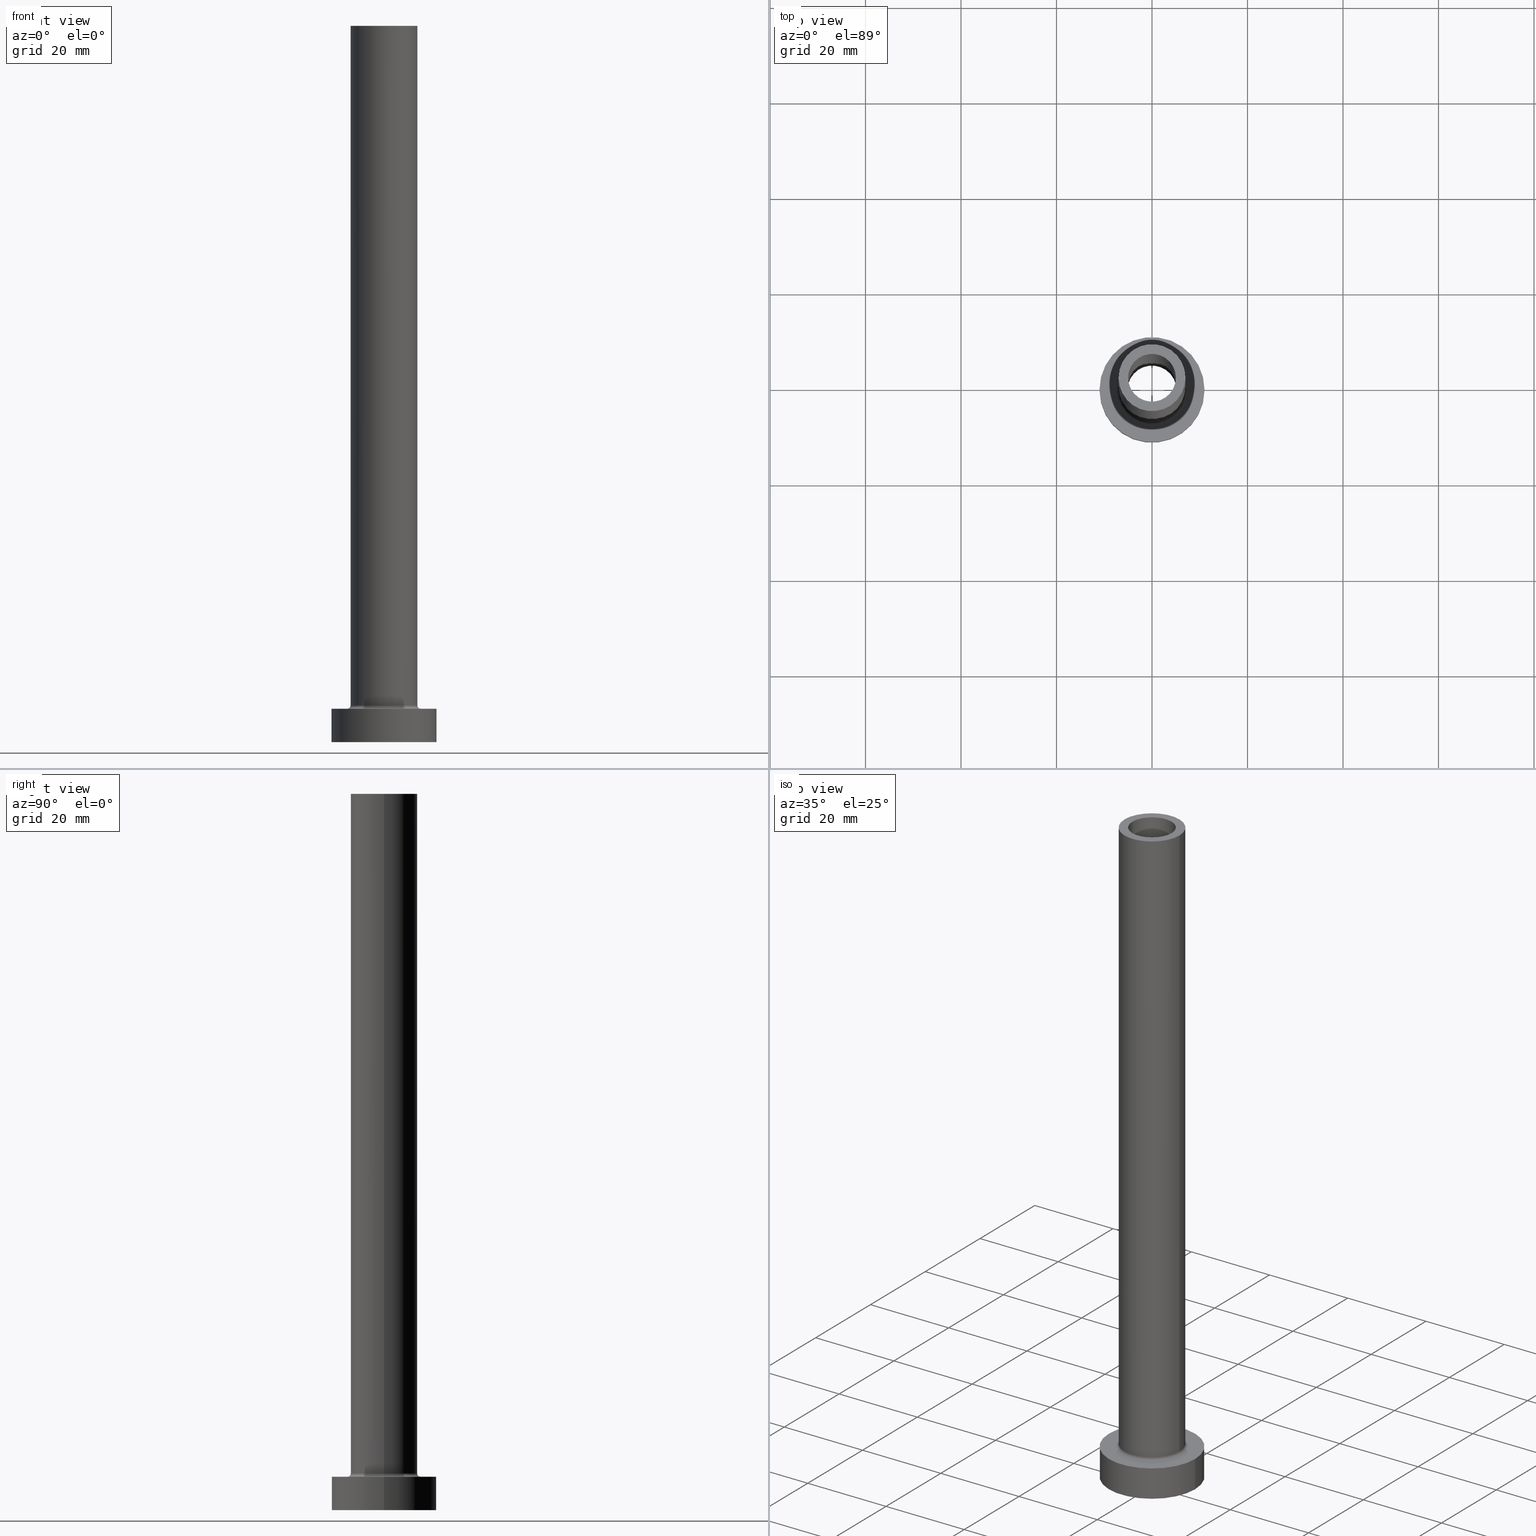
[diagram: canonical four-view strip — front | top / right | iso, engineering-drawing reading convention]
A machine part, canonical four-view strip (front | top / right | iso — engineering-drawing reading convention). The complete STEP part file that produces these views, byte-faithful:
ISO-10303-21;
HEADER;
FILE_DESCRIPTION (( 'STEP AP203' ),
    '1' );
FILE_NAME ('d979.STEP',
    '2023-02-13T07:44:22',
    ( '' ),
    ( '' ),
    'SwSTEP 2.0',
    'SolidWorks 2019',
    '' );
FILE_SCHEMA (( 'CONFIG_CONTROL_DESIGN' ));
ENDSEC;

DATA;
#1 = APPROVAL_ROLE ( '' ) ;
#2 = EDGE_CURVE ( 'NONE', #40, #75, #135, .T. ) ;
#3 = CARTESIAN_POINT ( 'NONE',  ( 5.000000000000000000, 6.123233995736765296E-16, 105.0000000000000000 ) ) ;
#4 = PERSON_AND_ORGANIZATION ( #68, #29 ) ;
#5 = CIRCLE ( 'NONE', #233, 7.000000000000000888 ) ;
#6 = DIRECTION ( 'NONE',  ( 0.000000000000000000, 0.000000000000000000, 1.000000000000000000 ) ) ;
#7 = DATE_AND_TIME ( #180, #91 ) ;
#8 = CARTESIAN_POINT ( 'NONE',  ( -7.000000000000000888, 0.000000000000000000, 150.0000000000000000 ) ) ;
#9 = DIRECTION ( 'NONE',  ( 0.000000000000000000, 0.000000000000000000, -1.000000000000000000 ) ) ;
#10 = ORIENTED_EDGE ( 'NONE', *, *, #445, .F. ) ;
#11 = CIRCLE ( 'NONE', #254, 7.000000000000000888 ) ;
#12 = DIRECTION ( 'NONE',  ( -1.000000000000000000, 0.000000000000000000, 0.000000000000000000 ) ) ;
#13 = ORIENTED_EDGE ( 'NONE', *, *, #354, .F. ) ;
#14 = EDGE_CURVE ( 'NONE', #362, #152, #387, .T. ) ;
#15 = CIRCLE ( 'NONE', #260, 5.000000000000000000 ) ;
#16 = PLANE ( 'NONE',  #353 ) ;
#17 = ORIENTED_EDGE ( 'NONE', *, *, #118, .F. ) ;
#18 = FACE_BOUND ( 'NONE', #395, .T. ) ;
#19 = ORIENTED_EDGE ( 'NONE', *, *, #177, .T. ) ;
#20 = DIRECTION ( 'NONE',  ( -0.000000000000000000, -0.000000000000000000, -1.000000000000000000 ) ) ;
#21 = APPROVAL_STATUS ( 'not_yet_approved' ) ;
#22 = CIRCLE ( 'NONE', #186, 5.000000000000000000 ) ;
#23 = CARTESIAN_POINT ( 'NONE',  ( 0.000000000000000000, 0.000000000000000000, 0.000000000000000000 ) ) ;
#24 = CYLINDRICAL_SURFACE ( 'NONE', #345, 5.150000000000001243 ) ;
#25 = APPROVAL_PERSON_ORGANIZATION ( #61, #318, #399 ) ;
#26 = CALENDAR_DATE ( 2023, 13, 2 ) ;
#27 = CC_DESIGN_PERSON_AND_ORGANIZATION_ASSIGNMENT ( #4, #114, ( #364 ) ) ;
#28 = AXIS2_PLACEMENT_3D ( 'NONE', #83, #85, #87 ) ;
#29 = ORGANIZATION ( 'NEUR�EN�', 'NEUR�EN�', '' ) ;
#30 = PERSON_AND_ORGANIZATION ( #68, #29 ) ;
#31 = ORIENTED_EDGE ( 'NONE', *, *, #145, .F. ) ;
#32 = DIRECTION ( 'NONE',  ( 1.000000000000000000, 0.000000000000000000, 0.000000000000000000 ) ) ;
#33 = EDGE_CURVE ( 'NONE', #152, #362, #117, .T. ) ;
#34 = CIRCLE ( 'NONE', #284, 11.00000000000000000 ) ;
#35 = APPLICATION_CONTEXT ( 'configuration controlled 3d designs of mechanical parts and assemblies' ) ;
#36 = VERTEX_POINT ( 'NONE', #3 ) ;
#37 = ORIENTED_EDGE ( 'NONE', *, *, #305, .T. ) ;
#38 = AXIS2_PLACEMENT_3D ( 'NONE', #385, #6, #181 ) ;
#39 = AXIS2_PLACEMENT_3D ( 'NONE', #293, #438, #122 ) ;
#40 = VERTEX_POINT ( 'NONE', #147 ) ;
#41 = FACE_OUTER_BOUND ( 'NONE', #149, .T. ) ;
#42 = VERTEX_POINT ( 'NONE', #414 ) ;
#43 = CARTESIAN_POINT ( 'NONE',  ( 0.000000000000000000, 0.000000000000000000, 0.000000000000000000 ) ) ;
#44 = DIRECTION ( 'NONE',  ( 1.000000000000000000, 0.000000000000000000, 0.000000000000000000 ) ) ;
#45 = ORIENTED_EDGE ( 'NONE', *, *, #287, .T. ) ;
#46 = AXIS2_PLACEMENT_3D ( 'NONE', #314, #109, #459 ) ;
#47 = ADVANCED_FACE ( 'NONE', ( #172 ), #202, .F. ) ;
#48 = DIRECTION ( 'NONE',  ( 0.000000000000000000, 0.000000000000000000, -1.000000000000000000 ) ) ;
#49 = ORIENTED_EDGE ( 'NONE', *, *, #62, .T. ) ;
#50 = APPROVAL_STATUS ( 'not_yet_approved' ) ;
#51 = DIRECTION ( 'NONE',  ( 1.000000000000000000, 0.000000000000000000, 0.000000000000000000 ) ) ;
#52 = LOCAL_TIME ( 8, 44, 22.00000000000000000, #448 ) ;
#53 = VERTEX_POINT ( 'NONE', #308 ) ;
#54 = LINE ( 'NONE', #351, #289 ) ;
#55 = CC_DESIGN_DATE_AND_TIME_ASSIGNMENT ( #57, #124, ( #458 ) ) ;
#56 = LINE ( 'NONE', #396, #102 ) ;
#57 = DATE_AND_TIME ( #185, #328 ) ;
#58 = CIRCLE ( 'NONE', #78, 5.150000000000001243 ) ;
#59 = DIRECTION ( 'NONE',  ( 0.000000000000000000, 0.000000000000000000, 1.000000000000000000 ) ) ;
#60 = EDGE_LOOP ( 'NONE', ( #113, #274, #424, #159 ) ) ;
#61 = PERSON_AND_ORGANIZATION ( #68, #29 ) ;
#62 = EDGE_CURVE ( 'NONE', #75, #40, #11, .T. ) ;
#63 = DIRECTION ( 'NONE',  ( -0.000000000000000000, -0.000000000000000000, -1.000000000000000000 ) ) ;
#64 = CARTESIAN_POINT ( 'NONE',  ( 0.000000000000000000, 0.000000000000000000, 150.0000000000000000 ) ) ;
#65 = CYLINDRICAL_SURFACE ( 'NONE', #291, 11.00000000000000000 ) ;
#66 = APPROVAL_DATE_TIME ( #404, #160 ) ;
#67 = ADVANCED_FACE ( 'NONE', ( #376, #372 ), #338, .F. ) ;
#68 = PERSON ( 'NEUR�EN�', 'NEUR�EN�', 'NEUR�EN�', ('NEUR�EN�'), ('NEUR�EN�'), ('NEUR�EN�') ) ;
#69 = DIRECTION ( 'NONE',  ( 0.000000000000000000, 0.000000000000000000, 1.000000000000000000 ) ) ;
#70 = AXIS2_PLACEMENT_3D ( 'NONE', #413, #20, #365 ) ;
#71 = CARTESIAN_POINT ( 'NONE',  ( 0.000000000000000000, 0.000000000000000000, 119.5663996924428858 ) ) ;
#72 = PRODUCT_DEFINITION_FORMATION_WITH_SPECIFIED_SOURCE ( 'LIBOVOLN�', '', #364, .NOT_KNOWN. ) ;
#73 = ADVANCED_FACE ( 'NONE', ( #41 ), #173, .F. ) ;
#74 = DIRECTION ( 'NONE',  ( 1.000000000000000000, 0.000000000000000000, 0.000000000000000000 ) ) ;
#75 = VERTEX_POINT ( 'NONE', #136 ) ;
#76 = DIRECTION ( 'NONE',  ( 0.000000000000000000, 0.000000000000000000, 1.000000000000000000 ) ) ;
#77 = ORIENTED_EDGE ( 'NONE', *, *, #218, .F. ) ;
#78 = AXIS2_PLACEMENT_3D ( 'NONE', #23, #163, #370 ) ;
#79 = DIRECTION ( 'NONE',  ( 0.000000000000000000, 0.000000000000000000, -1.000000000000000000 ) ) ;
#80 = CYLINDRICAL_SURFACE ( 'NONE', #249, 7.000000000000000888 ) ;
#81 = ORIENTED_EDGE ( 'NONE', *, *, #230, .F. ) ;
#82 = ADVANCED_FACE ( 'NONE', ( #198 ), #407, .F. ) ;
#83 = CARTESIAN_POINT ( 'NONE',  ( 0.000000000000000000, 0.000000000000000000, 7.000000000000000000 ) ) ;
#84 = FACE_OUTER_BOUND ( 'NONE', #410, .T. ) ;
#85 = DIRECTION ( 'NONE',  ( -0.000000000000000000, -0.000000000000000000, -1.000000000000000000 ) ) ;
#86 = ORIENTED_EDGE ( 'NONE', *, *, #388, .F. ) ;
#87 = DIRECTION ( 'NONE',  ( 1.000000000000000000, 0.000000000000000000, 0.000000000000000000 ) ) ;
#88 = EDGE_LOOP ( 'NONE', ( #37, #156 ) ) ;
#89 = PRODUCT_RELATED_PRODUCT_CATEGORY ( 'detail', '', ( #364 ) ) ;
#90 = AXIS2_PLACEMENT_3D ( 'NONE', #158, #59, #214 ) ;
#91 = LOCAL_TIME ( 8, 44, 22.00000000000000000, #105 ) ;
#92 = CARTESIAN_POINT ( 'NONE',  ( 0.000000000000000000, 0.000000000000000000, 150.0000000000000000 ) ) ;
#93 = CIRCLE ( 'NONE', #313, 0.7000000000000000666 ) ;
#94 = AXIS2_PLACEMENT_3D ( 'NONE', #455, #138, #271 ) ;
#95 = DIRECTION ( 'NONE',  ( 1.000000000000000000, 0.000000000000000000, -0.000000000000000000 ) ) ;
#96 = EDGE_CURVE ( 'NONE', #182, #139, #98, .T. ) ;
#97 = CLOSED_SHELL ( 'NONE', ( #73, #428, #82, #380, #265, #238, #132, #67, #151, #259, #47, #134, #193, #224 ) ) ;
#98 = CIRCLE ( 'NONE', #431, 7.700000000000001066 ) ;
#99 = DIRECTION ( 'NONE',  ( 0.000000000000000000, 0.000000000000000000, 1.000000000000000000 ) ) ;
#100 = CARTESIAN_POINT ( 'NONE',  ( 11.00000000000000000, 1.347111479062088405E-15, 7.000000000000000000 ) ) ;
#101 = EDGE_CURVE ( 'NONE', #250, #294, #34, .T. ) ;
#102 = VECTOR ( 'NONE', #9, 1000.000000000000000 ) ;
#103 = CARTESIAN_POINT ( 'NONE',  ( 0.000000000000000000, 0.000000000000000000, 0.000000000000000000 ) ) ;
#104 = ORIENTED_EDGE ( 'NONE', *, *, #347, .F. ) ;
#105 = COORDINATED_UNIVERSAL_TIME_OFFSET ( 1, 0, .AHEAD. ) ;
#106 = DIRECTION ( 'NONE',  ( 1.000000000000000000, 0.000000000000000000, 0.000000000000000000 ) ) ;
#107 = VERTEX_POINT ( 'NONE', #429 ) ;
#108 = ORIENTED_EDGE ( 'NONE', *, *, #118, .T. ) ;
#109 = DIRECTION ( 'NONE',  ( 0.000000000000000000, 0.000000000000000000, 1.000000000000000000 ) ) ;
#110 = EDGE_CURVE ( 'NONE', #40, #139, #299, .T. ) ;
#111 = CIRCLE ( 'NONE', #434, 11.00000000000000000 ) ;
#112 = DIRECTION ( 'NONE',  ( 0.000000000000000000, 0.000000000000000000, 1.000000000000000000 ) ) ;
#113 = ORIENTED_EDGE ( 'NONE', *, *, #405, .F. ) ;
#114 = PERSON_AND_ORGANIZATION_ROLE ( 'design_owner' ) ;
#115 = DIRECTION ( 'NONE',  ( 1.000000000000000000, 0.000000000000000000, 0.000000000000000000 ) ) ;
#116 = CARTESIAN_POINT ( 'NONE',  ( 0.000000000000000000, 0.000000000000000000, 0.000000000000000000 ) ) ;
#117 = CIRCLE ( 'NONE', #340, 5.150000000000001243 ) ;
#118 = EDGE_CURVE ( 'NONE', #294, #250, #418, .T. ) ;
#119 = CARTESIAN_POINT ( 'NONE',  ( -7.700000000000001066, 9.429780353434621002E-16, 7.000000000000006217 ) ) ;
#120 = ORIENTED_EDGE ( 'NONE', *, *, #2, .T. ) ;
#121 = CARTESIAN_POINT ( 'NONE',  ( 0.000000000000000000, 0.000000000000000000, 150.0000000000000000 ) ) ;
#122 = DIRECTION ( 'NONE',  ( -1.000000000000000000, 0.000000000000000000, 0.000000000000000000 ) ) ;
#123 = ORIENTED_EDGE ( 'NONE', *, *, #336, .T. ) ;
#124 = DATE_TIME_ROLE ( 'creation_date' ) ;
#125 = EDGE_CURVE ( 'NONE', #421, #339, #111, .T. ) ;
#126 = ORIENTED_EDGE ( 'NONE', *, *, #336, .F. ) ;
#127 = DIRECTION ( 'NONE',  ( -0.000000000000000000, -0.000000000000000000, -1.000000000000000000 ) ) ;
#128 = CIRCLE ( 'NONE', #401, 7.000000000000000888 ) ;
#129 = CARTESIAN_POINT ( 'NONE',  ( 0.000000000000000000, 0.000000000000000000, 150.0000000000000000 ) ) ;
#130 = PERSON_AND_ORGANIZATION ( #68, #29 ) ;
#131 = DIRECTION ( 'NONE',  ( 0.000000000000000000, 0.000000000000000000, 1.000000000000000000 ) ) ;
#132 = ADVANCED_FACE ( 'NONE', ( #18, #359 ), #355, .T. ) ;
#133 = CARTESIAN_POINT ( 'NONE',  ( 0.000000000000000000, 0.000000000000000000, 7.000000000000000000 ) ) ;
#134 = ADVANCED_FACE ( 'NONE', ( #188 ), #246, .F. ) ;
#135 = CIRCLE ( 'NONE', #430, 7.000000000000000888 ) ;
#136 = CARTESIAN_POINT ( 'NONE',  ( -7.000000000000000888, 0.000000000000000000, 7.700000000000012612 ) ) ;
#137 = EDGE_LOOP ( 'NONE', ( #239, #174 ) ) ;
#138 = DIRECTION ( 'NONE',  ( 0.000000000000000000, 0.000000000000000000, 1.000000000000000000 ) ) ;
#139 = VERTEX_POINT ( 'NONE', #210 ) ;
#140 = MECHANICAL_CONTEXT ( 'NONE', #35, 'mechanical' ) ;
#141 = SECURITY_CLASSIFICATION ( '', '', #300 ) ;
#142 = CARTESIAN_POINT ( 'NONE',  ( 0.000000000000000000, 0.000000000000000000, 7.000000000000000000 ) ) ;
#143 = ORIENTED_EDGE ( 'NONE', *, *, #187, .F. ) ;
#144 = APPLICATION_PROTOCOL_DEFINITION ( 'international standard', 'config_control_design', 1994, #269 ) ;
#145 = EDGE_CURVE ( 'NONE', #379, #270, #54, .T. ) ;
#146 = PERSON_AND_ORGANIZATION_ROLE ( 'creator' ) ;
#147 = CARTESIAN_POINT ( 'NONE',  ( 7.000000000000000888, 8.572527594031474176E-16, 7.700000000000012612 ) ) ;
#148 = CIRCLE ( 'NONE', #70, 5.150000000000001243 ) ;
#149 = EDGE_LOOP ( 'NONE', ( #439, #296, #10, #31 ) ) ;
#150 = DIRECTION ( 'NONE',  ( 0.000000000000000000, -1.000000000000000000, 0.000000000000000000 ) ) ;
#151 = ADVANCED_FACE ( 'NONE', ( #290 ), #80, .T. ) ;
#152 = VERTEX_POINT ( 'NONE', #321 ) ;
#153 = DIRECTION ( 'NONE',  ( -0.000000000000000000, -0.000000000000000000, -1.000000000000000000 ) ) ;
#154 = EDGE_LOOP ( 'NONE', ( #311, #199 ) ) ;
#155 = DIRECTION ( 'NONE',  ( 1.000000000000000000, 0.000000000000000000, -0.000000000000000000 ) ) ;
#156 = ORIENTED_EDGE ( 'NONE', *, *, #367, .T. ) ;
#157 = CIRCLE ( 'NONE', #94, 11.00000000000000000 ) ;
#158 = CARTESIAN_POINT ( 'NONE',  ( 0.000000000000000000, 0.000000000000000000, 105.0000000000000000 ) ) ;
#159 = ORIENTED_EDGE ( 'NONE', *, *, #101, .T. ) ;
#160 = APPROVAL ( #197, 'NEUR�EN�' ) ;
#161 = DIRECTION ( 'NONE',  ( -1.000000000000000000, 0.000000000000000000, 0.000000000000000000 ) ) ;
#162 = EDGE_LOOP ( 'NONE', ( #211, #183, #252, #143 ) ) ;
#163 = DIRECTION ( 'NONE',  ( -0.000000000000000000, -0.000000000000000000, -1.000000000000000000 ) ) ;
#164 = LINE ( 'NONE', #446, #306 ) ;
#165 = LINE ( 'NONE', #201, #241 ) ;
#166 = EDGE_CURVE ( 'NONE', #53, #36, #56, .T. ) ;
#167 = CARTESIAN_POINT ( 'NONE',  ( 0.000000000000000000, 0.000000000000000000, 150.0000000000000000 ) ) ;
#168 = DIRECTION ( 'NONE',  ( -0.000000000000000000, -0.000000000000000000, -1.000000000000000000 ) ) ;
#169 = DIRECTION ( 'NONE',  ( -0.000000000000000000, -0.000000000000000000, -1.000000000000000000 ) ) ;
#170 = DIRECTION ( 'NONE',  ( -0.000000000000000000, -0.000000000000000000, -1.000000000000000000 ) ) ;
#171 = EDGE_CURVE ( 'NONE', #75, #182, #93, .T. ) ;
#172 = FACE_OUTER_BOUND ( 'NONE', #207, .T. ) ;
#173 = CYLINDRICAL_SURFACE ( 'NONE', #176, 5.000000000000000000 ) ;
#174 = ORIENTED_EDGE ( 'NONE', *, *, #187, .T. ) ;
#175 = ORIENTED_EDGE ( 'NONE', *, *, #125, .T. ) ;
#176 = AXIS2_PLACEMENT_3D ( 'NONE', #196, #425, #315 ) ;
#177 = EDGE_CURVE ( 'NONE', #139, #182, #221, .T. ) ;
#178 = DIRECTION ( 'NONE',  ( 0.000000000000000000, 0.000000000000000000, 1.000000000000000000 ) ) ;
#179 = VECTOR ( 'NONE', #168, 1000.000000000000000 ) ;
#180 = CALENDAR_DATE ( 2023, 13, 2 ) ;
#181 = DIRECTION ( 'NONE',  ( 1.000000000000000000, 0.000000000000000000, -0.000000000000000000 ) ) ;
#182 = VERTEX_POINT ( 'NONE', #119 ) ;
#183 = ORIENTED_EDGE ( 'NONE', *, *, #347, .T. ) ;
#184 = CARTESIAN_POINT ( 'NONE',  ( -7.700000000000001066, 9.429780353434621002E-16, 7.700000000000012612 ) ) ;
#185 = CALENDAR_DATE ( 2023, 13, 2 ) ;
#186 = AXIS2_PLACEMENT_3D ( 'NONE', #360, #76, #225 ) ;
#187 = EDGE_CURVE ( 'NONE', #36, #270, #276, .T. ) ;
#188 = FACE_OUTER_BOUND ( 'NONE', #282, .T. ) ;
#189 = COORDINATED_UNIVERSAL_TIME_OFFSET ( 1, 0, .AHEAD. ) ;
#190 = DIRECTION ( 'NONE',  ( 0.000000000000000000, 0.000000000000000000, 1.000000000000000000 ) ) ;
#191 = UNCERTAINTY_MEASURE_WITH_UNIT (LENGTH_MEASURE( 1.000000000000000082E-05 ), #350, 'distance_accuracy_value', 'NONE');
#192 = CARTESIAN_POINT ( 'NONE',  ( 11.00000000000000000, 1.347111479062088405E-15, 0.000000000000000000 ) ) ;
#193 = ADVANCED_FACE ( 'NONE', ( #248, #251 ), #16, .F. ) ;
#194 = LINE ( 'NONE', #304, #375 ) ;
#195 = LINE ( 'NONE', #416, #179 ) ;
#196 = CARTESIAN_POINT ( 'NONE',  ( 0.000000000000000000, 0.000000000000000000, 150.0000000000000000 ) ) ;
#197 = APPROVAL_STATUS ( 'not_yet_approved' ) ;
#198 = FACE_OUTER_BOUND ( 'NONE', #398, .T. ) ;
#199 = ORIENTED_EDGE ( 'NONE', *, *, #33, .F. ) ;
#200 = APPROVAL_DATE_TIME ( #7, #397 ) ;
#201 = CARTESIAN_POINT ( 'NONE',  ( 5.150000000000001243, 6.306931015608868610E-16, 119.5663996924428858 ) ) ;
#202 = TOROIDAL_SURFACE ( 'NONE', #303, 7.700000000000001066, 0.6999999999999999556 ) ;
#203 = CARTESIAN_POINT ( 'NONE',  ( 0.000000000000000000, 0.000000000000000000, 7.700000000000012612 ) ) ;
#204 = CC_DESIGN_PERSON_AND_ORGANIZATION_ASSIGNMENT ( #275, #146, ( #458 ) ) ;
#205 = AXIS2_PLACEMENT_3D ( 'NONE', #408, #369, #334 ) ;
#206 = DIRECTION ( 'NONE',  ( 1.000000000000000000, 0.000000000000000000, -0.000000000000000000 ) ) ;
#207 = EDGE_LOOP ( 'NONE', ( #280, #456, #377, #256 ) ) ;
#208 = CARTESIAN_POINT ( 'NONE',  ( 0.000000000000000000, 0.000000000000000000, 105.0000000000000000 ) ) ;
#209 = ORIENTED_EDGE ( 'NONE', *, *, #322, .T. ) ;
#210 = CARTESIAN_POINT ( 'NONE',  ( 7.700000000000001066, 0.000000000000000000, 7.000000000000006217 ) ) ;
#211 = ORIENTED_EDGE ( 'NONE', *, *, #166, .F. ) ;
#212 = AXIS2_PLACEMENT_3D ( 'NONE', #324, #79, #389 ) ;
#213 = CC_DESIGN_APPROVAL ( #318, ( #72 ) ) ;
#214 = DIRECTION ( 'NONE',  ( 1.000000000000000000, 0.000000000000000000, 0.000000000000000000 ) ) ;
#215 = ORIENTED_EDGE ( 'NONE', *, *, #405, .T. ) ;
#216 = CARTESIAN_POINT ( 'NONE',  ( -5.150000000000001243, 0.000000000000000000, 105.0000000000000000 ) ) ;
#217 = CARTESIAN_POINT ( 'NONE',  ( 7.700000000000001066, 0.000000000000000000, 7.700000000000012612 ) ) ;
#218 = EDGE_CURVE ( 'NONE', #362, #107, #329, .T. ) ;
#219 = EDGE_LOOP ( 'NONE', ( #441, #356 ) ) ;
#220 = ORIENTED_EDGE ( 'NONE', *, *, #62, .F. ) ;
#221 = CIRCLE ( 'NONE', #28, 7.700000000000001066 ) ;
#222 = AXIS2_PLACEMENT_3D ( 'NONE', #167, #420, #374 ) ;
#223 = DIRECTION ( 'NONE',  ( 0.000000000000000000, 0.000000000000000000, 1.000000000000000000 ) ) ;
#224 = ADVANCED_FACE ( 'NONE', ( #326 ), #394, .F. ) ;
#225 = DIRECTION ( 'NONE',  ( 1.000000000000000000, 0.000000000000000000, 0.000000000000000000 ) ) ;
#226 = SHAPE_DEFINITION_REPRESENTATION ( #450, #243 ) ;
#227 = FACE_OUTER_BOUND ( 'NONE', #60, .T. ) ;
#228 = LOCAL_TIME ( 8, 44, 22.00000000000000000, #189 ) ;
#229 = APPROVAL_ROLE ( '' ) ;
#230 = EDGE_CURVE ( 'NONE', #379, #53, #22, .T. ) ;
#231 = DIRECTION ( 'NONE',  ( 0.000000000000000000, 0.000000000000000000, 1.000000000000000000 ) ) ;
#232 = DIRECTION ( 'NONE',  ( -1.000000000000000000, 0.000000000000000000, 0.000000000000000000 ) ) ;
#233 = AXIS2_PLACEMENT_3D ( 'NONE', #129, #190, #106 ) ;
#234 = DIRECTION ( 'NONE',  ( 0.000000000000000000, 0.000000000000000000, 1.000000000000000000 ) ) ;
#235 = CC_DESIGN_APPROVAL ( #160, ( #141 ) ) ;
#236 = EDGE_LOOP ( 'NONE', ( #419, #215, #108, #86 ) ) ;
#237 = CARTESIAN_POINT ( 'NONE',  ( -11.00000000000000000, 0.000000000000000000, 0.000000000000000000 ) ) ;
#238 = ADVANCED_FACE ( 'NONE', ( #227 ), #341, .T. ) ;
#239 = ORIENTED_EDGE ( 'NONE', *, *, #445, .T. ) ;
#240 = CARTESIAN_POINT ( 'NONE',  ( 0.000000000000000000, 0.000000000000000000, 7.700000000000012612 ) ) ;
#241 = VECTOR ( 'NONE', #255, 1000.000000000000000 ) ;
#242 = DIRECTION ( 'NONE',  ( -0.000000000000000000, -0.000000000000000000, -1.000000000000000000 ) ) ;
#243 = ADVANCED_BREP_SHAPE_REPRESENTATION ( 'd979', ( #406, #361 ), #382 ) ;
#244 = CARTESIAN_POINT ( 'NONE',  ( 0.000000000000000000, 0.000000000000000000, 7.000000000000000000 ) ) ;
#245 = EDGE_LOOP ( 'NONE', ( #330, #17 ) ) ;
#246 = CYLINDRICAL_SURFACE ( 'NONE', #212, 5.150000000000001243 ) ;
#247 = ORIENTED_EDGE ( 'NONE', *, *, #367, .F. ) ;
#248 = FACE_BOUND ( 'NONE', #137, .T. ) ;
#249 = AXIS2_PLACEMENT_3D ( 'NONE', #121, #153, #12 ) ;
#250 = VERTEX_POINT ( 'NONE', #237 ) ;
#251 = FACE_OUTER_BOUND ( 'NONE', #154, .T. ) ;
#252 = ORIENTED_EDGE ( 'NONE', *, *, #145, .T. ) ;
#253 = ORIENTED_EDGE ( 'NONE', *, *, #96, .T. ) ;
#254 = AXIS2_PLACEMENT_3D ( 'NONE', #342, #99, #454 ) ;
#255 = DIRECTION ( 'NONE',  ( 0.000000000000000000, 0.000000000000000000, -1.000000000000000000 ) ) ;
#256 = ORIENTED_EDGE ( 'NONE', *, *, #96, .F. ) ;
#257 = VECTOR ( 'NONE', #427, 1000.000000000000000 ) ;
#258 = APPROVAL_DATE_TIME ( #297, #318 ) ;
#259 = ADVANCED_FACE ( 'NONE', ( #440, #332 ), #262, .T. ) ;
#260 = AXIS2_PLACEMENT_3D ( 'NONE', #92, #223, #115 ) ;
#261 = PERSON_AND_ORGANIZATION_ROLE ( 'creator' ) ;
#262 = PLANE ( 'NONE',  #451 ) ;
#263 = AXIS2_PLACEMENT_3D ( 'NONE', #417, #69, #206 ) ;
#264 = CARTESIAN_POINT ( 'NONE',  ( 0.000000000000000000, 0.000000000000000000, 7.000000000000000000 ) ) ;
#265 = ADVANCED_FACE ( 'NONE', ( #449 ), #65, .T. ) ;
#266 = DIRECTION ( 'NONE',  ( 0.000000000000000000, 0.000000000000000000, -1.000000000000000000 ) ) ;
#267 = DATE_TIME_ROLE ( 'classification_date' ) ;
#268 = DIRECTION ( 'NONE',  ( 0.000000000000000000, 0.000000000000000000, 1.000000000000000000 ) ) ;
#269 = APPLICATION_CONTEXT ( 'configuration controlled 3d designs of mechanical parts and assemblies' ) ;
#270 = VERTEX_POINT ( 'NONE', #409 ) ;
#271 = DIRECTION ( 'NONE',  ( 1.000000000000000000, 0.000000000000000000, 0.000000000000000000 ) ) ;
#272 = EDGE_CURVE ( 'NONE', #107, #42, #58, .T. ) ;
#273 = AXIS2_PLACEMENT_3D ( 'NONE', #217, #150, #48 ) ;
#274 = ORIENTED_EDGE ( 'NONE', *, *, #437, .F. ) ;
#275 = PERSON_AND_ORGANIZATION ( #68, #29 ) ;
#276 = CIRCLE ( 'NONE', #90, 5.000000000000000000 ) ;
#277 = APPROVAL_PERSON_ORGANIZATION ( #317, #397, #1 ) ;
#278 = DIRECTION ( 'NONE',  ( 0.000000000000000000, 0.000000000000000000, -1.000000000000000000 ) ) ;
#279 = CC_DESIGN_PERSON_AND_ORGANIZATION_ASSIGNMENT ( #412, #261, ( #72 ) ) ;
#280 = ORIENTED_EDGE ( 'NONE', *, *, #171, .F. ) ;
#281 = DIRECTION ( 'NONE',  ( 1.000000000000000000, 0.000000000000000000, 0.000000000000000000 ) ) ;
#282 = EDGE_LOOP ( 'NONE', ( #126, #358, #337, #292 ) ) ;
#283 =( NAMED_UNIT ( * ) PLANE_ANGLE_UNIT ( ) SI_UNIT ( $, .RADIAN. ) );
#284 = AXIS2_PLACEMENT_3D ( 'NONE', #103, #234, #281 ) ;
#285 = DIRECTION ( 'NONE',  ( 1.224646799147353207E-16, 1.000000000000000000, -0.000000000000000000 ) ) ;
#286 = VERTEX_POINT ( 'NONE', #298 ) ;
#287 = EDGE_CURVE ( 'NONE', #42, #107, #148, .T. ) ;
#288 = DESIGN_CONTEXT ( 'detailed design', #269, 'design' ) ;
#289 = VECTOR ( 'NONE', #278, 1000.000000000000000 ) ;
#290 = FACE_OUTER_BOUND ( 'NONE', #391, .T. ) ;
#291 = AXIS2_PLACEMENT_3D ( 'NONE', #264, #169, #161 ) ;
#292 = ORIENTED_EDGE ( 'NONE', *, *, #272, .T. ) ;
#293 = CARTESIAN_POINT ( 'NONE',  ( 0.000000000000000000, 0.000000000000000000, 150.0000000000000000 ) ) ;
#294 = VERTEX_POINT ( 'NONE', #192 ) ;
#295 = DIRECTION ( 'NONE',  ( -0.000000000000000000, -0.000000000000000000, -1.000000000000000000 ) ) ;
#296 = ORIENTED_EDGE ( 'NONE', *, *, #166, .T. ) ;
#297 = DATE_AND_TIME ( #392, #228 ) ;
#298 = CARTESIAN_POINT ( 'NONE',  ( 7.000000000000000888, 8.572527594031474176E-16, 150.0000000000000000 ) ) ;
#299 = CIRCLE ( 'NONE', #273, 0.7000000000000000666 ) ;
#300 = SECURITY_CLASSIFICATION_LEVEL ( 'unclassified' ) ;
#301 = PERSON_AND_ORGANIZATION_ROLE ( 'design_supplier' ) ;
#302 = DIRECTION ( 'NONE',  ( 0.000000000000000000, 0.000000000000000000, 1.000000000000000000 ) ) ;
#303 = AXIS2_PLACEMENT_3D ( 'NONE', #240, #231, #346 ) ;
#304 = CARTESIAN_POINT ( 'NONE',  ( -11.00000000000000000, 0.000000000000000000, 7.000000000000000000 ) ) ;
#305 = EDGE_CURVE ( 'NONE', #349, #286, #5, .T. ) ;
#306 = VECTOR ( 'NONE', #127, 1000.000000000000000 ) ;
#307 = CALENDAR_DATE ( 2023, 13, 2 ) ;
#308 = CARTESIAN_POINT ( 'NONE',  ( 5.000000000000000000, 6.123233995736765296E-16, 150.0000000000000000 ) ) ;
#309 = CC_DESIGN_PERSON_AND_ORGANIZATION_ASSIGNMENT ( #30, #444, ( #141 ) ) ;
#310 = AXIS2_PLACEMENT_3D ( 'NONE', #208, #383, #32 ) ;
#311 = ORIENTED_EDGE ( 'NONE', *, *, #14, .F. ) ;
#312 = ORIENTED_EDGE ( 'NONE', *, *, #322, .F. ) ;
#313 = AXIS2_PLACEMENT_3D ( 'NONE', #184, #285, #432 ) ;
#314 = CARTESIAN_POINT ( 'NONE',  ( 0.000000000000000000, 0.000000000000000000, 7.700000000000012612 ) ) ;
#315 = DIRECTION ( 'NONE',  ( -1.000000000000000000, 0.000000000000000000, 0.000000000000000000 ) ) ;
#316 = ORIENTED_EDGE ( 'NONE', *, *, #437, .T. ) ;
#317 = PERSON_AND_ORGANIZATION ( #68, #29 ) ;
#318 = APPROVAL ( #21, 'NEUR�EN�' ) ;
#319 = CARTESIAN_POINT ( 'NONE',  ( 0.000000000000000000, 0.000000000000000000, 105.0000000000000000 ) ) ;
#320 = DIRECTION ( 'NONE',  ( 1.000000000000000000, 0.000000000000000000, 0.000000000000000000 ) ) ;
#321 = CARTESIAN_POINT ( 'NONE',  ( 5.150000000000001243, 6.306931015608868610E-16, 105.0000000000000000 ) ) ;
#322 = EDGE_CURVE ( 'NONE', #286, #40, #378, .T. ) ;
#323 = EDGE_LOOP ( 'NONE', ( #316, #175 ) ) ;
#324 = CARTESIAN_POINT ( 'NONE',  ( 0.000000000000000000, 0.000000000000000000, 119.5663996924428858 ) ) ;
#325 = ORIENTED_EDGE ( 'NONE', *, *, #305, .F. ) ;
#326 = FACE_OUTER_BOUND ( 'NONE', #162, .T. ) ;
#327 = ORIENTED_EDGE ( 'NONE', *, *, #171, .T. ) ;
#328 = LOCAL_TIME ( 8, 44, 22.00000000000000000, #422 ) ;
#329 = LINE ( 'NONE', #435, #257 ) ;
#330 = ORIENTED_EDGE ( 'NONE', *, *, #101, .F. ) ;
#331 = CARTESIAN_POINT ( 'NONE',  ( 7.000000000000000888, 8.572527594031474176E-16, 150.0000000000000000 ) ) ;
#332 = FACE_OUTER_BOUND ( 'NONE', #88, .T. ) ;
#333 = CC_DESIGN_DATE_AND_TIME_ASSIGNMENT ( #453, #267, ( #141 ) ) ;
#334 = DIRECTION ( 'NONE',  ( 1.000000000000000000, 0.000000000000000000, 0.000000000000000000 ) ) ;
#335 = CC_DESIGN_APPROVAL ( #397, ( #458 ) ) ;
#336 = EDGE_CURVE ( 'NONE', #152, #42, #165, .T. ) ;
#337 = ORIENTED_EDGE ( 'NONE', *, *, #218, .T. ) ;
#338 = PLANE ( 'NONE',  #263 ) ;
#339 = VERTEX_POINT ( 'NONE', #400 ) ;
#340 = AXIS2_PLACEMENT_3D ( 'NONE', #319, #348, #44 ) ;
#341 = CYLINDRICAL_SURFACE ( 'NONE', #443, 11.00000000000000000 ) ;
#342 = CARTESIAN_POINT ( 'NONE',  ( 0.000000000000000000, 0.000000000000000000, 7.700000000000012612 ) ) ;
#343 = ORIENTED_EDGE ( 'NONE', *, *, #14, .T. ) ;
#344 =( NAMED_UNIT ( * ) SI_UNIT ( $, .STERADIAN. ) SOLID_ANGLE_UNIT ( ) );
#345 = AXIS2_PLACEMENT_3D ( 'NONE', #71, #266, #232 ) ;
#346 = DIRECTION ( 'NONE',  ( 1.000000000000000000, 0.000000000000000000, 0.000000000000000000 ) ) ;
#347 = EDGE_CURVE ( 'NONE', #53, #379, #15, .T. ) ;
#348 = DIRECTION ( 'NONE',  ( 0.000000000000000000, 0.000000000000000000, 1.000000000000000000 ) ) ;
#349 = VERTEX_POINT ( 'NONE', #8 ) ;
#350 =( LENGTH_UNIT ( ) NAMED_UNIT ( * ) SI_UNIT ( .MILLI., .METRE. ) );
#351 = CARTESIAN_POINT ( 'NONE',  ( -5.000000000000000000, 0.000000000000000000, 150.0000000000000000 ) ) ;
#352 = EDGE_LOOP ( 'NONE', ( #343, #123, #45, #77 ) ) ;
#353 = AXIS2_PLACEMENT_3D ( 'NONE', #390, #357, #155 ) ;
#354 = EDGE_CURVE ( 'NONE', #349, #75, #164, .T. ) ;
#355 = PLANE ( 'NONE',  #38 ) ;
#356 = ORIENTED_EDGE ( 'NONE', *, *, #287, .F. ) ;
#357 = DIRECTION ( 'NONE',  ( 0.000000000000000000, 0.000000000000000000, 1.000000000000000000 ) ) ;
#358 = ORIENTED_EDGE ( 'NONE', *, *, #33, .T. ) ;
#359 = FACE_OUTER_BOUND ( 'NONE', #323, .T. ) ;
#360 = CARTESIAN_POINT ( 'NONE',  ( 0.000000000000000000, 0.000000000000000000, 150.0000000000000000 ) ) ;
#361 = AXIS2_PLACEMENT_3D ( 'NONE', #43, #381, #457 ) ;
#362 = VERTEX_POINT ( 'NONE', #216 ) ;
#363 = CC_DESIGN_SECURITY_CLASSIFICATION ( #141, ( #72 ) ) ;
#364 = PRODUCT ( 'd979', 'd979', '', ( #140 ) ) ;
#365 = DIRECTION ( 'NONE',  ( 1.000000000000000000, 0.000000000000000000, 0.000000000000000000 ) ) ;
#366 = DIRECTION ( 'NONE',  ( -1.000000000000000000, 0.000000000000000000, 0.000000000000000000 ) ) ;
#367 = EDGE_CURVE ( 'NONE', #286, #349, #128, .T. ) ;
#368 = AXIS2_PLACEMENT_3D ( 'NONE', #116, #112, #320 ) ;
#369 = DIRECTION ( 'NONE',  ( 0.000000000000000000, 0.000000000000000000, 1.000000000000000000 ) ) ;
#370 = DIRECTION ( 'NONE',  ( 1.000000000000000000, 0.000000000000000000, 0.000000000000000000 ) ) ;
#371 = FACE_OUTER_BOUND ( 'NONE', #352, .T. ) ;
#372 = FACE_OUTER_BOUND ( 'NONE', #245, .T. ) ;
#373 = PERSON_AND_ORGANIZATION ( #68, #29 ) ;
#374 = DIRECTION ( 'NONE',  ( -1.000000000000000000, 0.000000000000000000, 0.000000000000000000 ) ) ;
#375 = VECTOR ( 'NONE', #170, 1000.000000000000000 ) ;
#376 = FACE_BOUND ( 'NONE', #219, .T. ) ;
#377 = ORIENTED_EDGE ( 'NONE', *, *, #110, .T. ) ;
#378 = LINE ( 'NONE', #331, #426 ) ;
#379 = VERTEX_POINT ( 'NONE', #393 ) ;
#380 = ADVANCED_FACE ( 'NONE', ( #84 ), #452, .T. ) ;
#381 = DIRECTION ( 'NONE',  ( 0.000000000000000000, 0.000000000000000000, 1.000000000000000000 ) ) ;
#382 =( GEOMETRIC_REPRESENTATION_CONTEXT ( 3 ) GLOBAL_UNCERTAINTY_ASSIGNED_CONTEXT ( ( #191 ) ) GLOBAL_UNIT_ASSIGNED_CONTEXT ( ( #350, #283, #344 ) ) REPRESENTATION_CONTEXT ( 'NONE', 'WORKASPACE' ) );
#383 = DIRECTION ( 'NONE',  ( 0.000000000000000000, 0.000000000000000000, 1.000000000000000000 ) ) ;
#384 = APPLICATION_PROTOCOL_DEFINITION ( 'international standard', 'config_control_design', 1994, #35 ) ;
#385 = CARTESIAN_POINT ( 'NONE',  ( 0.000000000000000000, 0.000000000000000000, 7.000000000000000000 ) ) ;
#386 = EDGE_LOOP ( 'NONE', ( #81, #104 ) ) ;
#387 = CIRCLE ( 'NONE', #310, 5.150000000000001243 ) ;
#388 = EDGE_CURVE ( 'NONE', #339, #250, #194, .T. ) ;
#389 = DIRECTION ( 'NONE',  ( -1.000000000000000000, 0.000000000000000000, 0.000000000000000000 ) ) ;
#390 = CARTESIAN_POINT ( 'NONE',  ( 0.000000000000000000, 0.000000000000000000, 105.0000000000000000 ) ) ;
#391 = EDGE_LOOP ( 'NONE', ( #312, #325, #402, #49 ) ) ;
#392 = CALENDAR_DATE ( 2023, 13, 2 ) ;
#393 = CARTESIAN_POINT ( 'NONE',  ( -5.000000000000000000, 0.000000000000000000, 150.0000000000000000 ) ) ;
#394 = CYLINDRICAL_SURFACE ( 'NONE', #39, 5.000000000000000000 ) ;
#395 = EDGE_LOOP ( 'NONE', ( #19, #253 ) ) ;
#396 = CARTESIAN_POINT ( 'NONE',  ( 5.000000000000000000, 6.123233995736765296E-16, 150.0000000000000000 ) ) ;
#397 = APPROVAL ( #50, 'NEUR�EN�' ) ;
#398 = EDGE_LOOP ( 'NONE', ( #220, #327, #436, #460 ) ) ;
#399 = APPROVAL_ROLE ( '' ) ;
#400 = CARTESIAN_POINT ( 'NONE',  ( -11.00000000000000000, 0.000000000000000000, 7.000000000000000000 ) ) ;
#401 = AXIS2_PLACEMENT_3D ( 'NONE', #64, #131, #433 ) ;
#402 = ORIENTED_EDGE ( 'NONE', *, *, #354, .T. ) ;
#403 = APPROVAL_PERSON_ORGANIZATION ( #130, #160, #229 ) ;
#404 = DATE_AND_TIME ( #307, #447 ) ;
#405 = EDGE_CURVE ( 'NONE', #421, #294, #195, .T. ) ;
#406 = MANIFOLD_SOLID_BREP ( 'Odebrat vysunut�m4', #97 ) ;
#407 = TOROIDAL_SURFACE ( 'NONE', #46, 7.700000000000001066, 0.6999999999999999556 ) ;
#408 = CARTESIAN_POINT ( 'NONE',  ( 0.000000000000000000, 0.000000000000000000, 105.0000000000000000 ) ) ;
#409 = CARTESIAN_POINT ( 'NONE',  ( -5.000000000000000000, 0.000000000000000000, 105.0000000000000000 ) ) ;
#410 = EDGE_LOOP ( 'NONE', ( #247, #209, #120, #13 ) ) ;
#411 = CIRCLE ( 'NONE', #205, 5.000000000000000000 ) ;
#412 = PERSON_AND_ORGANIZATION ( #68, #29 ) ;
#413 = CARTESIAN_POINT ( 'NONE',  ( 0.000000000000000000, 0.000000000000000000, 0.000000000000000000 ) ) ;
#414 = CARTESIAN_POINT ( 'NONE',  ( 5.150000000000001243, 6.306931015608868610E-16, 0.000000000000000000 ) ) ;
#415 = COORDINATED_UNIVERSAL_TIME_OFFSET ( 1, 0, .AHEAD. ) ;
#416 = CARTESIAN_POINT ( 'NONE',  ( 11.00000000000000000, 1.347111479062088405E-15, 7.000000000000000000 ) ) ;
#417 = CARTESIAN_POINT ( 'NONE',  ( 0.000000000000000000, 0.000000000000000000, 0.000000000000000000 ) ) ;
#418 = CIRCLE ( 'NONE', #368, 11.00000000000000000 ) ;
#419 = ORIENTED_EDGE ( 'NONE', *, *, #125, .F. ) ;
#420 = DIRECTION ( 'NONE',  ( -0.000000000000000000, -0.000000000000000000, -1.000000000000000000 ) ) ;
#421 = VERTEX_POINT ( 'NONE', #100 ) ;
#422 = COORDINATED_UNIVERSAL_TIME_OFFSET ( 1, 0, .AHEAD. ) ;
#423 = CC_DESIGN_PERSON_AND_ORGANIZATION_ASSIGNMENT ( #373, #301, ( #72 ) ) ;
#424 = ORIENTED_EDGE ( 'NONE', *, *, #388, .T. ) ;
#425 = DIRECTION ( 'NONE',  ( 0.000000000000000000, 0.000000000000000000, -1.000000000000000000 ) ) ;
#426 = VECTOR ( 'NONE', #295, 1000.000000000000000 ) ;
#427 = DIRECTION ( 'NONE',  ( 0.000000000000000000, 0.000000000000000000, -1.000000000000000000 ) ) ;
#428 = ADVANCED_FACE ( 'NONE', ( #371 ), #24, .F. ) ;
#429 = CARTESIAN_POINT ( 'NONE',  ( -5.150000000000001243, 0.000000000000000000, 0.000000000000000000 ) ) ;
#430 = AXIS2_PLACEMENT_3D ( 'NONE', #203, #268, #74 ) ;
#431 = AXIS2_PLACEMENT_3D ( 'NONE', #142, #242, #461 ) ;
#432 = DIRECTION ( 'NONE',  ( -1.000000000000000000, 1.224646799147351975E-16, 0.000000000000000000 ) ) ;
#433 = DIRECTION ( 'NONE',  ( 1.000000000000000000, 0.000000000000000000, 0.000000000000000000 ) ) ;
#434 = AXIS2_PLACEMENT_3D ( 'NONE', #244, #178, #51 ) ;
#435 = CARTESIAN_POINT ( 'NONE',  ( -5.150000000000001243, 0.000000000000000000, 119.5663996924428858 ) ) ;
#436 = ORIENTED_EDGE ( 'NONE', *, *, #177, .F. ) ;
#437 = EDGE_CURVE ( 'NONE', #339, #421, #157, .T. ) ;
#438 = DIRECTION ( 'NONE',  ( 0.000000000000000000, 0.000000000000000000, -1.000000000000000000 ) ) ;
#439 = ORIENTED_EDGE ( 'NONE', *, *, #230, .T. ) ;
#440 = FACE_BOUND ( 'NONE', #386, .T. ) ;
#441 = ORIENTED_EDGE ( 'NONE', *, *, #272, .F. ) ;
#442 = CARTESIAN_POINT ( 'NONE',  ( 0.000000000000000000, 0.000000000000000000, 150.0000000000000000 ) ) ;
#443 = AXIS2_PLACEMENT_3D ( 'NONE', #133, #63, #366 ) ;
#444 = PERSON_AND_ORGANIZATION_ROLE ( 'classification_officer' ) ;
#445 = EDGE_CURVE ( 'NONE', #270, #36, #411, .T. ) ;
#446 = CARTESIAN_POINT ( 'NONE',  ( -7.000000000000000888, 0.000000000000000000, 150.0000000000000000 ) ) ;
#447 = LOCAL_TIME ( 8, 44, 22.00000000000000000, #415 ) ;
#448 = COORDINATED_UNIVERSAL_TIME_OFFSET ( 1, 0, .AHEAD. ) ;
#449 = FACE_OUTER_BOUND ( 'NONE', #236, .T. ) ;
#450 = PRODUCT_DEFINITION_SHAPE ( 'NONE', 'NONE',  #458 ) ;
#451 = AXIS2_PLACEMENT_3D ( 'NONE', #442, #302, #95 ) ;
#452 = CYLINDRICAL_SURFACE ( 'NONE', #222, 7.000000000000000888 ) ;
#453 = DATE_AND_TIME ( #26, #52 ) ;
#454 = DIRECTION ( 'NONE',  ( 1.000000000000000000, 0.000000000000000000, 0.000000000000000000 ) ) ;
#455 = CARTESIAN_POINT ( 'NONE',  ( 0.000000000000000000, 0.000000000000000000, 7.000000000000000000 ) ) ;
#456 = ORIENTED_EDGE ( 'NONE', *, *, #2, .F. ) ;
#457 = DIRECTION ( 'NONE',  ( 1.000000000000000000, 0.000000000000000000, 0.000000000000000000 ) ) ;
#458 = PRODUCT_DEFINITION ( 'NEZN�M�', '', #72, #288 ) ;
#459 = DIRECTION ( 'NONE',  ( 1.000000000000000000, 0.000000000000000000, 0.000000000000000000 ) ) ;
#460 = ORIENTED_EDGE ( 'NONE', *, *, #110, .F. ) ;
#461 = DIRECTION ( 'NONE',  ( 1.000000000000000000, 0.000000000000000000, 0.000000000000000000 ) ) ;
ENDSEC;
END-ISO-10303-21;
